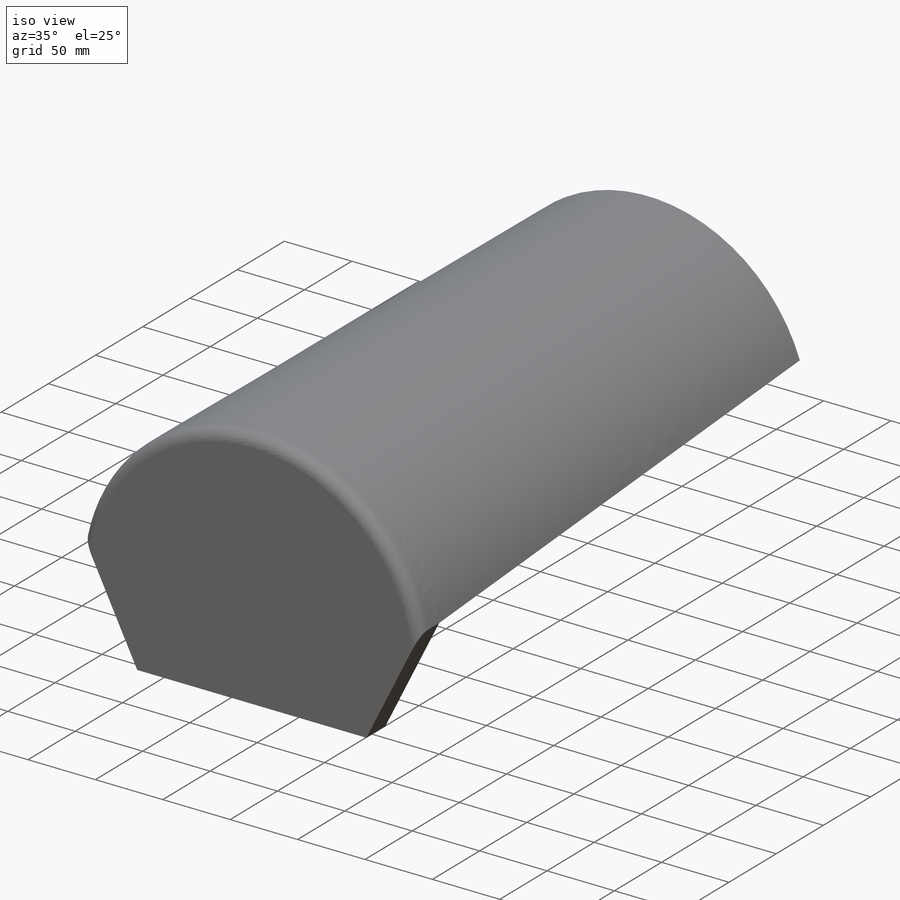
[diagram: iso view]
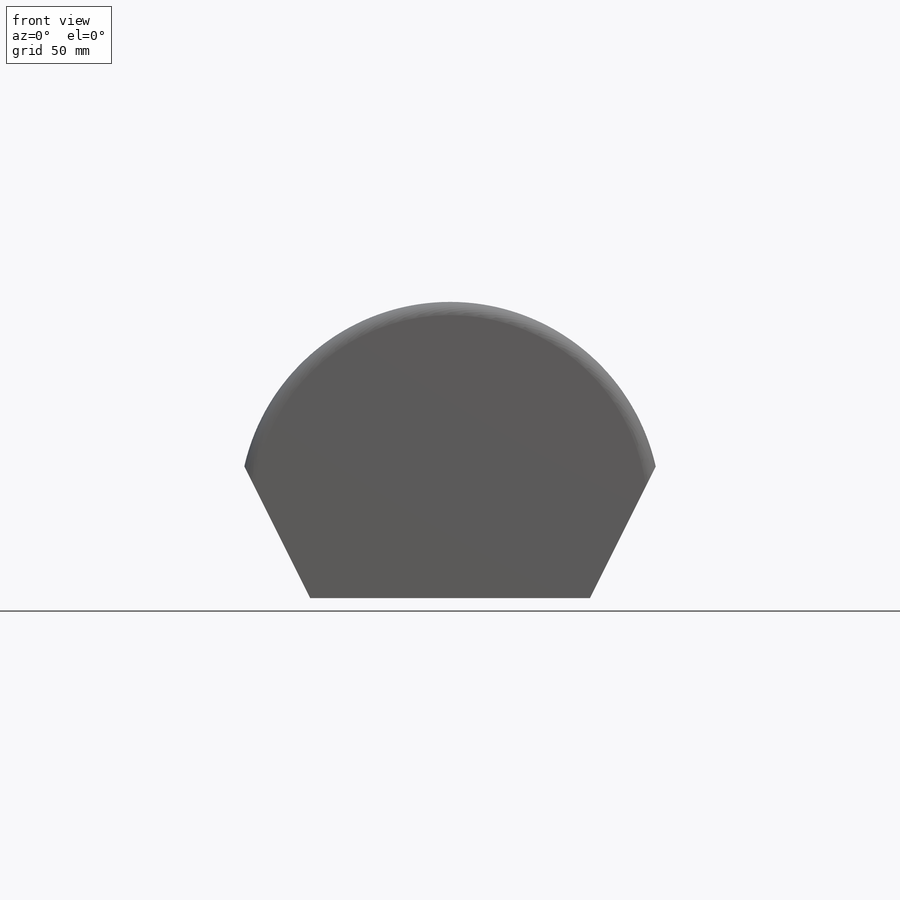
[diagram: front view]
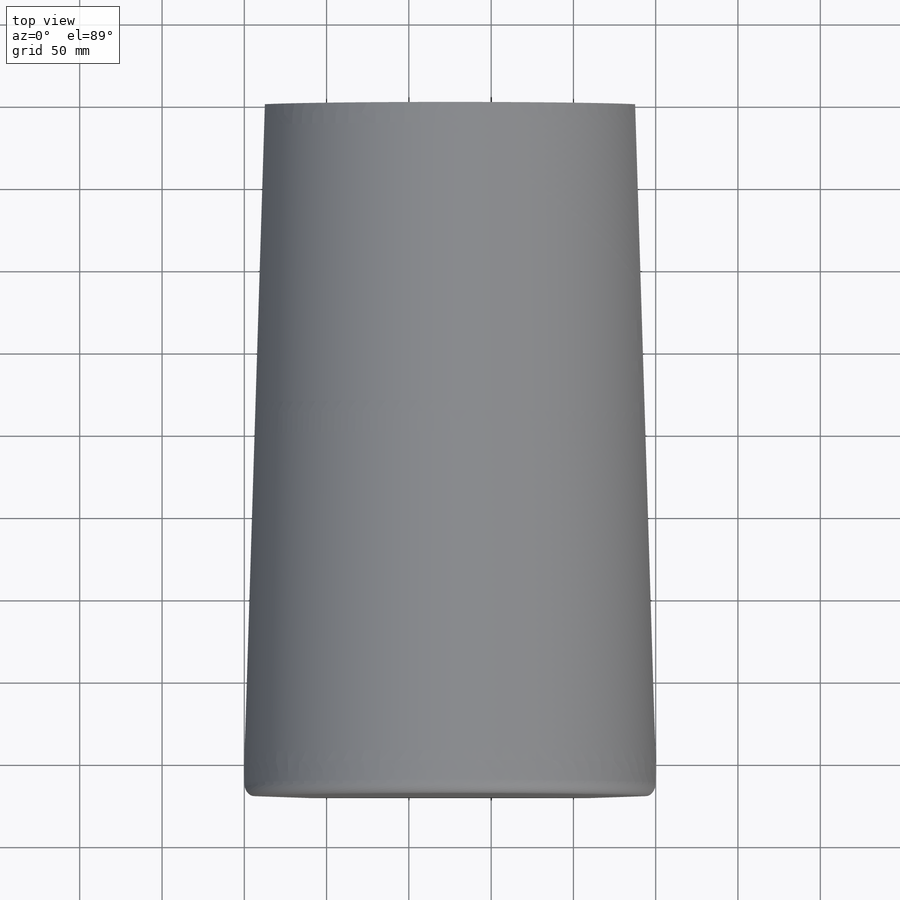
[diagram: top view]
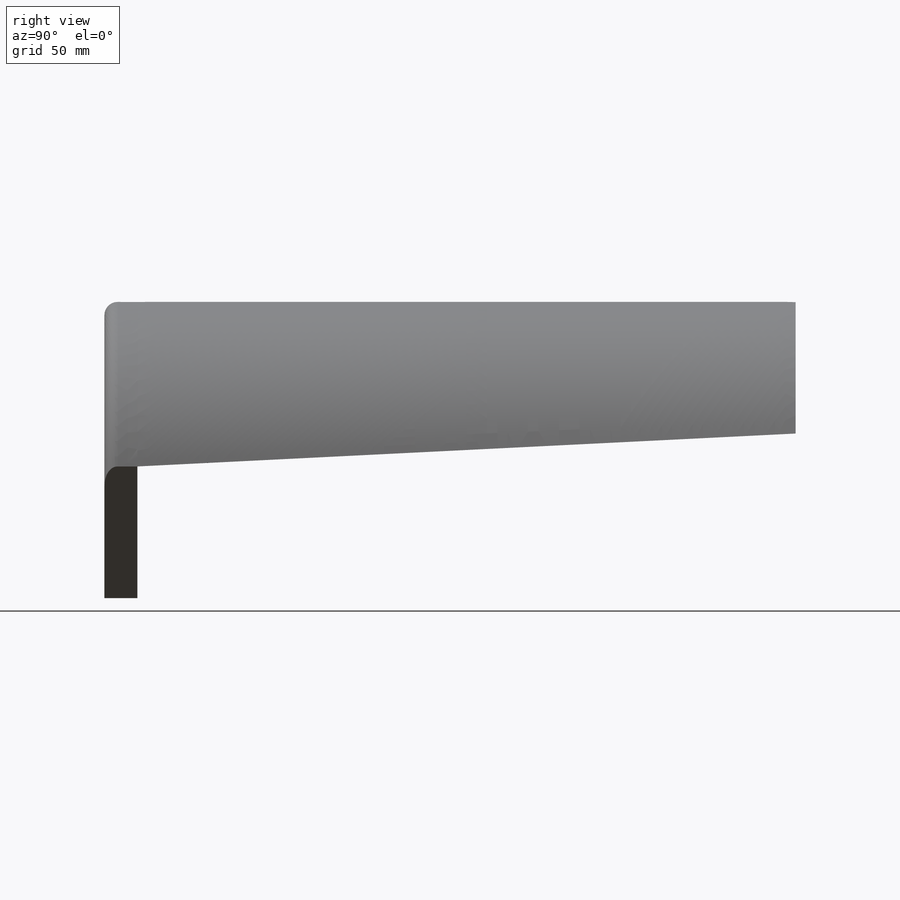
[diagram: right view]
SOLIDWORKS PART (.sldprt)
format: sldprt  version: not decoded by parser v0  size: 484,352 bytes
history: native  units: mm
features: plane x6, sketch x5, material x1, extrude x1, fillet x1 (+14 scaffold rows collapsed)
feature tree (28):
  scaffold x14  (default folders/planes/origin — collapsed)
  material  "Materiál <není určen>"
  plane  "Přední rovina"
  plane  "Horní rovina"
  plane  "Pravá rovina"
  sketch  "Skica1"  dims[c1.D2=126.0mm c1.D4=~126.022727mm c1.D1=250.0mm c2.D2=80.0mm c2.D3=170.0mm c2.D4=190.0mm c2.D5=80.0mm c2.D6=110.0mm c3.D2=110.0mm c3.D4=~169.257159mm c4.D2=180.0mm]
  extrude  "Vysunout1"  Depth=20mm
  sketch  "Skica2"  dims[c1.D2=~112.359763mm c1.D1=20.0mm c2.D2=25.0mm]
  plane  "Rovina1"  Offset=420mm
  sketch  "Skica3"  dims[c1.D1=~126.022727mm c1.D5=~111.656043mm c2.D1=80.0mm c2.D2=225.0mm c2.D3=12.0mm c2.D4=12.0mm c2.D5=28.0mm]
  plane  "Rovina3"  Offset=125mm
  sketch  "Skica5"
  plane  "Rovina2"  Offset=125mm
  sketch  "Skica4"
  fillet  "Zaoblit1"  Radius=8mm
decode coverage: 5 of 7 modeling features carry decoded parameters
note: ~ marks probable driven/reference dimensions
note: suppression state not decoded; provenance and decode notes live in map.json
